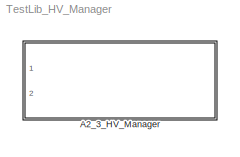
MODEL TestLib_HV_Manager
KIND library
CONFIG PostLoadFcn = , if any(exist('dsrtsu_mdlpostloadfcn', 'file') == [2, 3, 6]), try dsrtsu_mdlpostloadfcn('Execute', bdroot); catch fprintf('Error in PostLoadFcn (dsrtsu_mdlpostloadfcn) for model \"%s\":\\n %s\\n', bdroot, lasterr); end, end, \n
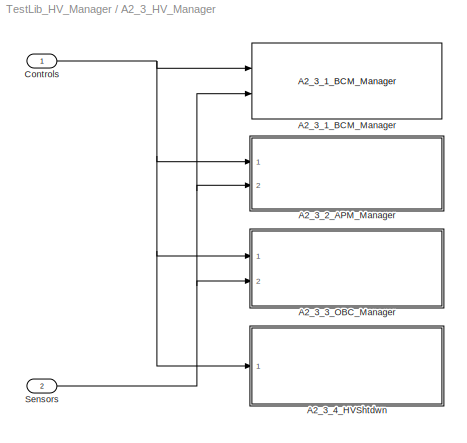
BLOCK [SubSystem] A2_3_HV_Manager
  FunctionWithSeparateData = off
  MaskHideContents = off
  MinAlgLoopOccurrences = off
  Opaque = off
  Ports = [2]
  PropExecContextOutsideSubsystem = off
  RTWSystemCode = Auto
  RequestExecContextInheritance = off
  SID = 1
BLOCK [Reference] A2_3_HV_Manager/A2_3_1_BCM_Manager  REF=TestLib_BCM_Manager/A2_3_1_BCM_Manager
  FunctionWithSeparateData = off
  Ports = [2]
  RTWMemSecDataConstants = Inherit from model
  RTWMemSecDataInternal = Inherit from model
  RTWMemSecDataParameters = Inherit from model
  RTWMemSecFuncExecute = Inherit from model
  RTWMemSecFuncInitTerm = Inherit from model
  SID = 153
  ShowPortLabels = FromPortIcon
  SourceBlock = TestLib_BCM_Manager/A2_3_1_BCM_Manager
  SourceType = SubSystem
  SystemSampleTime = -1
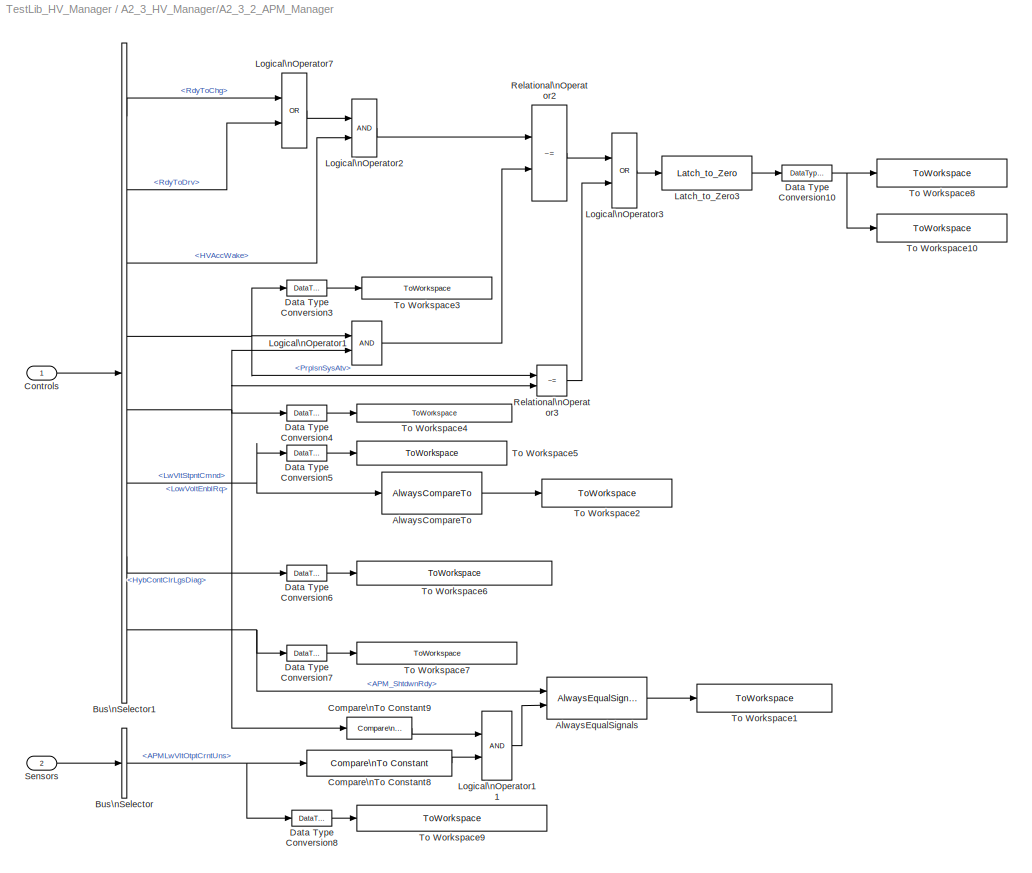
BLOCK [SubSystem] A2_3_HV_Manager/A2_3_2_APM_Manager
  FunctionWithSeparateData = off
  MaskHideContents = off
  MinAlgLoopOccurrences = off
  Opaque = off
  Ports = [2]
  PropExecContextOutsideSubsystem = off
  RTWSystemCode = Auto
  RequestExecContextInheritance = off
  SID = 5
BLOCK [Reference] A2_3_HV_Manager/A2_3_2_APM_Manager/AlwaysCompareTo  REF=EC2_libraries/AlwaysCompareTo
  FunctionWithSeparateData = off
  Ports = [1, 1]
  RTWMemSecDataConstants = Inherit from model
  RTWMemSecDataInternal = Inherit from model
  RTWMemSecDataParameters = Inherit from model
  RTWMemSecFuncExecute = Inherit from model
  RTWMemSecFuncInitTerm = Inherit from model
  SID = 150
  ShowPortLabels = FromPortIcon
  SourceBlock = EC2_libraries/AlwaysCompareTo
  SystemSampleTime = -1
  exp_val = cal.apm.LowVoltageSetpoint
BLOCK [Reference] A2_3_HV_Manager/A2_3_2_APM_Manager/AlwaysEqualSignals  REF=EC2_libraries/AlwaysEqualSignals
  FunctionWithSeparateData = off
  Ports = [2, 1]
  RTWMemSecDataConstants = Inherit from model
  RTWMemSecDataInternal = Inherit from model
  RTWMemSecDataParameters = Inherit from model
  RTWMemSecFuncExecute = Inherit from model
  RTWMemSecFuncInitTerm = Inherit from model
  SID = 151
  ShowPortLabels = FromPortIcon
  SourceBlock = EC2_libraries/AlwaysEqualSignals
  SourceType = SubSystem
  SystemSampleTime = -1
BLOCK [BusSelector] A2_3_HV_Manager/A2_3_2_APM_Manager/Bus\nSelector
  OutputSignals = Sensors_CAN.APM_HS_Tx.Accessory_Pwr_Mod_Gen_Status_1.APMLwVltOtptCrntUns
  Ports = [1, 1]
  SID = 8
BLOCK [BusSelector] A2_3_HV_Manager/A2_3_2_APM_Manager/Bus\nSelector1
  OutputSignals = Powertrain_SC_Controls.HV_Status.RdyToChg,Powertrain_SC_Controls.HV_Status.RdyToDrv,Powertrain_SC_Controls.HV_Status.HVAccWake,Powertrain_SC_Controls.APM_Controls.PrplsnSysAtv,Powertrain_SC_Controls.APM_Controls.LowVoltEnblRq,Powertrain_SC_Controls.APM_Controls.LwVltStpntCmnd,Powertrain_SC_Controls.APM_Controls.HybContClrLgsDiag,Powertrain_SC_Controls.APM_Status.APM_ShtdwnRdy
  Ports = [1, 8]
  SID = 9
BLOCK [Reference] A2_3_HV_Manager/A2_3_2_APM_Manager/Compare\nTo Constant8  REF=simulink/Logic and Bit\nOperations/Compare\nTo Constant
  FunctionWithSeparateData = off
  LogicOutDataTypeMode = uint8
  Ports = [1, 1]
  RTWMemSecDataConstants = Inherit from model
  RTWMemSecDataInternal = Inherit from model
  RTWMemSecDataParameters = Inherit from model
  RTWMemSecFuncExecute = Inherit from model
  RTWMemSecFuncInitTerm = Inherit from model
  SID = 11
  ShowPortLabels = FromPortIcon
  SourceBlock = simulink/Logic and Bit\nOperations/Compare\nTo Constant
  SourceType = Compare To Constant
  SystemSampleTime = -1
  ZeroCross = on
  const = cal.apm.MaxShtdwnCurrent
  relop = <
BLOCK [Reference] A2_3_HV_Manager/A2_3_2_APM_Manager/Compare\nTo Constant9  REF=simulink/Logic and Bit\nOperations/Compare\nTo Constant
  FunctionWithSeparateData = off
  LogicOutDataTypeMode = boolean
  Ports = [1, 1]
  RTWMemSecDataConstants = Inherit from model
  RTWMemSecDataInternal = Inherit from model
  RTWMemSecDataParameters = Inherit from model
  RTWMemSecFuncExecute = Inherit from model
  RTWMemSecFuncInitTerm = Inherit from model
  SID = 12
  ShowPortLabels = FromPortIcon
  SourceBlock = simulink/Logic and Bit\nOperations/Compare\nTo Constant
  SourceType = Compare To Constant
  SystemSampleTime = -1
  ZeroCross = on
  const = 0
  relop = ==
BLOCK [Inport] A2_3_HV_Manager/A2_3_2_APM_Manager/Controls
  IconDisplay = Port number
  OutDataType = fixdt(1, 16)
  OutScaling = 2^0
  SID = 6
BLOCK [DataTypeConversion] A2_3_HV_Manager/A2_3_2_APM_Manager/Data Type Conversion10
  OutDataType = fixdt(1, 16)
  OutScaling = 2^0
  RndMeth = Floor
  SID = 14
  SaturateOnIntegerOverflow = off
BLOCK [DataTypeConversion] A2_3_HV_Manager/A2_3_2_APM_Manager/Data Type Conversion3
  OutDataType = fixdt(1, 16)
  OutScaling = 2^0
  RndMeth = Floor
  SID = 16
  SaturateOnIntegerOverflow = off
BLOCK [DataTypeConversion] A2_3_HV_Manager/A2_3_2_APM_Manager/Data Type Conversion4
  OutDataType = fixdt(1, 16)
  OutScaling = 2^0
  RndMeth = Floor
  SID = 17
  SaturateOnIntegerOverflow = off
BLOCK [DataTypeConversion] A2_3_HV_Manager/A2_3_2_APM_Manager/Data Type Conversion5
  OutDataType = fixdt(1, 16)
  OutScaling = 2^0
  RndMeth = Floor
  SID = 18
  SaturateOnIntegerOverflow = off
BLOCK [DataTypeConversion] A2_3_HV_Manager/A2_3_2_APM_Manager/Data Type Conversion6
  OutDataType = fixdt(1, 16)
  OutScaling = 2^0
  RndMeth = Floor
  SID = 19
  SaturateOnIntegerOverflow = off
BLOCK [DataTypeConversion] A2_3_HV_Manager/A2_3_2_APM_Manager/Data Type Conversion7
  OutDataType = fixdt(1, 16)
  OutScaling = 2^0
  RndMeth = Floor
  SID = 20
  SaturateOnIntegerOverflow = off
BLOCK [DataTypeConversion] A2_3_HV_Manager/A2_3_2_APM_Manager/Data Type Conversion8
  OutDataType = fixdt(1, 16)
  OutScaling = 2^0
  RndMeth = Floor
  SID = 21
  SaturateOnIntegerOverflow = off
BLOCK [Reference] A2_3_HV_Manager/A2_3_2_APM_Manager/Latch_to_Zero3  REF=EC2_libraries/Latch_to_Zero
  FunctionWithSeparateData = off
  Ports = [1, 1]
  RTWMemSecDataConstants = Inherit from model
  RTWMemSecDataInternal = Inherit from model
  RTWMemSecDataParameters = Inherit from model
  RTWMemSecFuncExecute = Inherit from model
  RTWMemSecFuncInitTerm = Inherit from model
  SID = 24
  ShowPortLabels = FromPortIcon
  SourceBlock = EC2_libraries/Latch_to_Zero
  SourceType = SubSystem
  SystemSampleTime = -1
BLOCK [Logic] A2_3_HV_Manager/A2_3_2_APM_Manager/Logical\nOperator1
  AllPortsSameDT = off
  OutDataTypeMode = boolean
  OutDataTypeStr = boolean
  Ports = [2, 1]
  SID = 25
BLOCK [Logic] A2_3_HV_Manager/A2_3_2_APM_Manager/Logical\nOperator11
  AllPortsSameDT = off
  OutDataTypeMode = boolean
  OutDataTypeStr = boolean
  Ports = [2, 1]
  SID = 26
BLOCK [Logic] A2_3_HV_Manager/A2_3_2_APM_Manager/Logical\nOperator2
  AllPortsSameDT = off
  OutDataTypeMode = boolean
  OutDataTypeStr = boolean
  Ports = [2, 1]
  SID = 27
BLOCK [Logic] A2_3_HV_Manager/A2_3_2_APM_Manager/Logical\nOperator3
  AllPortsSameDT = off
  Operator = OR
  OutDataTypeMode = boolean
  OutDataTypeStr = boolean
  Ports = [2, 1]
  SID = 28
BLOCK [Logic] A2_3_HV_Manager/A2_3_2_APM_Manager/Logical\nOperator7
  AllPortsSameDT = off
  Operator = OR
  OutDataTypeMode = boolean
  OutDataTypeStr = boolean
  Ports = [2, 1]
  SID = 29
BLOCK [RelationalOperator] A2_3_HV_Manager/A2_3_2_APM_Manager/Relational\nOperator2
  InputSameDT = off
  LogicDataType = fixdt(0, 8)
  LogicOutDataTypeMode = boolean
  Operator = ~=
  OutDataTypeStr = boolean
  Ports = [2, 1]
  SID = 31
BLOCK [RelationalOperator] A2_3_HV_Manager/A2_3_2_APM_Manager/Relational\nOperator3
  InputSameDT = off
  LogicDataType = fixdt(0, 8)
  LogicOutDataTypeMode = boolean
  Operator = ~=
  OutDataTypeStr = boolean
  Ports = [2, 1]
  SID = 32
BLOCK [Inport] A2_3_HV_Manager/A2_3_2_APM_Manager/Sensors
  IconDisplay = Port number
  OutDataType = fixdt(1, 16)
  OutScaling = 2^0
  Port = 2
  SID = 7
BLOCK [ToWorkspace] A2_3_HV_Manager/A2_3_2_APM_Manager/To Workspace1
  Decimation = WORKSPACE_DECIMATION
  MaxDataPoints = inf
  Ports = [1]
  SID = 33
  SampleTime = -1
  SaveFormat = Array
  VariableName = Req_A_2_3_2_3_1_Check
BLOCK [ToWorkspace] A2_3_HV_Manager/A2_3_2_APM_Manager/To Workspace10
  Decimation = WORKSPACE_DECIMATION
  MaxDataPoints = inf
  Ports = [1]
  SID = 34
  SampleTime = -1
  SaveFormat = Array
  VariableName = Req_A_2_3_2_3_Check
BLOCK [ToWorkspace] A2_3_HV_Manager/A2_3_2_APM_Manager/To Workspace2
  Decimation = WORKSPACE_DECIMATION
  MaxDataPoints = inf
  Ports = [1]
  SID = 35
  SampleTime = -1
  SaveFormat = Array
  VariableName = Req_A_2_3_2_2_Check
BLOCK [ToWorkspace] A2_3_HV_Manager/A2_3_2_APM_Manager/To Workspace3
  Decimation = WORKSPACE_DECIMATION
  MaxDataPoints = inf
  Ports = [1]
  SID = 36
  SampleTime = -1
  SaveFormat = Array
  VariableName = Powertrain_PrplsnSysAtv
BLOCK [ToWorkspace] A2_3_HV_Manager/A2_3_2_APM_Manager/To Workspace4
  Decimation = WORKSPACE_DECIMATION
  MaxDataPoints = inf
  Ports = [1]
  SID = 37
  SampleTime = -1
  SaveFormat = Array
  VariableName = Powertrain_LowVoltEnblRq
BLOCK [ToWorkspace] A2_3_HV_Manager/A2_3_2_APM_Manager/To Workspace5
  Decimation = WORKSPACE_DECIMATION
  MaxDataPoints = inf
  Ports = [1]
  SID = 38
  SampleTime = -1
  SaveFormat = Array
  VariableName = Powertrain_LwVltStpntCmnd
BLOCK [ToWorkspace] A2_3_HV_Manager/A2_3_2_APM_Manager/To Workspace6
  Decimation = WORKSPACE_DECIMATION
  MaxDataPoints = inf
  Ports = [1]
  SID = 39
  SampleTime = -1
  SaveFormat = Array
  VariableName = Powertrain_HybContClrLgsDiag
BLOCK [ToWorkspace] A2_3_HV_Manager/A2_3_2_APM_Manager/To Workspace7
  Decimation = WORKSPACE_DECIMATION
  MaxDataPoints = inf
  Ports = [1]
  SID = 40
  SampleTime = -1
  SaveFormat = Array
  VariableName = Powertrain_APM_ShtdwnRdy
BLOCK [ToWorkspace] A2_3_HV_Manager/A2_3_2_APM_Manager/To Workspace8
  Decimation = WORKSPACE_DECIMATION
  MaxDataPoints = inf
  Ports = [1]
  SID = 41
  SampleTime = -1
  SaveFormat = Array
  VariableName = Req_A_2_3_2_1_Check
BLOCK [ToWorkspace] A2_3_HV_Manager/A2_3_2_APM_Manager/To Workspace9
  Decimation = WORKSPACE_DECIMATION
  MaxDataPoints = inf
  Ports = [1]
  SID = 42
  SampleTime = -1
  SaveFormat = Array
  VariableName = Sensors_APMLwVltOtptCrntUns
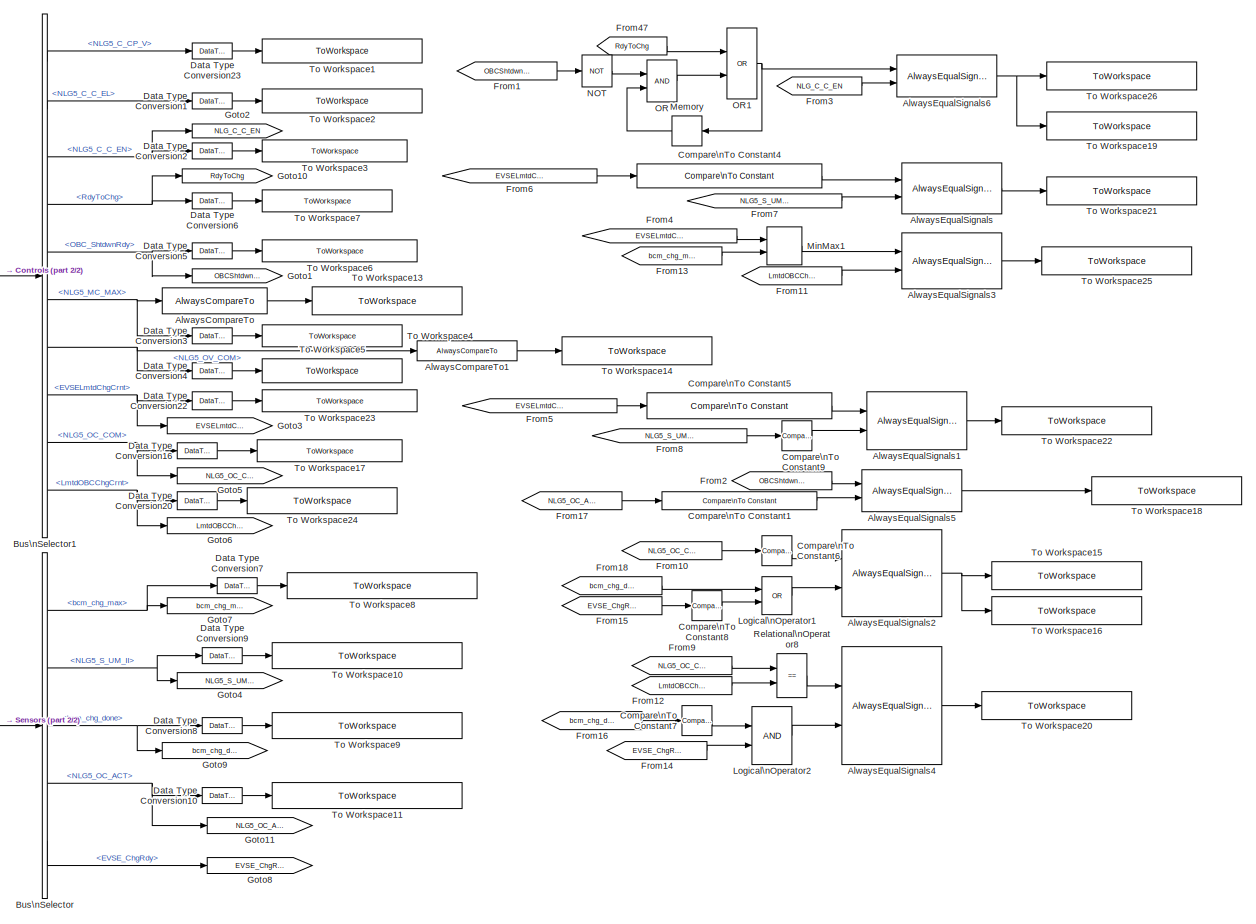
[diagram: A2_3_HV_Manager/A2_3_3_OBC_Manager - part 1/2, most of the canvas]
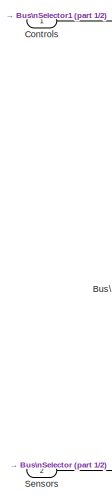
[diagram: A2_3_HV_Manager/A2_3_3_OBC_Manager - part 2/2, middle left region]
BLOCK [SubSystem] A2_3_HV_Manager/A2_3_3_OBC_Manager
  FunctionWithSeparateData = off
  MaskHideContents = off
  MinAlgLoopOccurrences = off
  Opaque = off
  Ports = [2]
  PropExecContextOutsideSubsystem = off
  RTWSystemCode = Auto
  RequestExecContextInheritance = off
  SID = 43
BLOCK [Reference] A2_3_HV_Manager/A2_3_3_OBC_Manager/AlwaysCompareTo  REF=EC2_libraries/AlwaysCompareTo
  FunctionWithSeparateData = off
  Ports = [1, 1]
  RTWMemSecDataConstants = Inherit from model
  RTWMemSecDataInternal = Inherit from model
  RTWMemSecDataParameters = Inherit from model
  RTWMemSecFuncExecute = Inherit from model
  RTWMemSecFuncInitTerm = Inherit from model
  SID = 46
  ShowPortLabels = FromPortIcon
  SourceBlock = EC2_libraries/AlwaysCompareTo
  SystemSampleTime = -1
  exp_val = cal.obc.MaxMainsCurrent
BLOCK [Reference] A2_3_HV_Manager/A2_3_3_OBC_Manager/AlwaysCompareTo1  REF=EC2_libraries/AlwaysCompareTo
  FunctionWithSeparateData = off
  Ports = [1, 1]
  RTWMemSecDataConstants = Inherit from model
  RTWMemSecDataInternal = Inherit from model
  RTWMemSecDataParameters = Inherit from model
  RTWMemSecFuncExecute = Inherit from model
  RTWMemSecFuncInitTerm = Inherit from model
  SID = 47
  ShowPortLabels = FromPortIcon
  SourceBlock = EC2_libraries/AlwaysCompareTo
  SystemSampleTime = -1
  exp_val = cal.obc.MaxOutputVoltage
BLOCK [Reference] A2_3_HV_Manager/A2_3_3_OBC_Manager/AlwaysEqualSignals  REF=EC2_libraries/AlwaysEqualSignals
  FunctionWithSeparateData = off
  Ports = [2, 1]
  RTWMemSecDataConstants = Inherit from model
  RTWMemSecDataInternal = Inherit from model
  RTWMemSecDataParameters = Inherit from model
  RTWMemSecFuncExecute = Inherit from model
  RTWMemSecFuncInitTerm = Inherit from model
  SID = 48
  ShowPortLabels = FromPortIcon
  SourceBlock = EC2_libraries/AlwaysEqualSignals
  SourceType = SubSystem
  SystemSampleTime = -1
BLOCK [Reference] A2_3_HV_Manager/A2_3_3_OBC_Manager/AlwaysEqualSignals1  REF=EC2_libraries/AlwaysEqualSignals
  FunctionWithSeparateData = off
  Ports = [2, 1]
  RTWMemSecDataConstants = Inherit from model
  RTWMemSecDataInternal = Inherit from model
  RTWMemSecDataParameters = Inherit from model
  RTWMemSecFuncExecute = Inherit from model
  RTWMemSecFuncInitTerm = Inherit from model
  SID = 49
  ShowPortLabels = FromPortIcon
  SourceBlock = EC2_libraries/AlwaysEqualSignals
  SourceType = SubSystem
  SystemSampleTime = -1
BLOCK [Reference] A2_3_HV_Manager/A2_3_3_OBC_Manager/AlwaysEqualSignals2  REF=EC2_libraries/AlwaysEqualSignals
  FunctionWithSeparateData = off
  Ports = [2, 1]
  RTWMemSecDataConstants = Inherit from model
  RTWMemSecDataInternal = Inherit from model
  RTWMemSecDataParameters = Inherit from model
  RTWMemSecFuncExecute = Inherit from model
  RTWMemSecFuncInitTerm = Inherit from model
  SID = 50
  ShowPortLabels = FromPortIcon
  SourceBlock = EC2_libraries/AlwaysEqualSignals
  SourceType = SubSystem
  SystemSampleTime = -1
BLOCK [Reference] A2_3_HV_Manager/A2_3_3_OBC_Manager/AlwaysEqualSignals3  REF=EC2_libraries/AlwaysEqualSignals
  FunctionWithSeparateData = off
  Ports = [2, 1]
  RTWMemSecDataConstants = Inherit from model
  RTWMemSecDataInternal = Inherit from model
  RTWMemSecDataParameters = Inherit from model
  RTWMemSecFuncExecute = Inherit from model
  RTWMemSecFuncInitTerm = Inherit from model
  SID = 51
  ShowPortLabels = FromPortIcon
  SourceBlock = EC2_libraries/AlwaysEqualSignals
  SourceType = SubSystem
  SystemSampleTime = -1
BLOCK [Reference] A2_3_HV_Manager/A2_3_3_OBC_Manager/AlwaysEqualSignals4  REF=EC2_libraries/AlwaysEqualSignals
  FunctionWithSeparateData = off
  Ports = [2, 1]
  RTWMemSecDataConstants = Inherit from model
  RTWMemSecDataInternal = Inherit from model
  RTWMemSecDataParameters = Inherit from model
  RTWMemSecFuncExecute = Inherit from model
  RTWMemSecFuncInitTerm = Inherit from model
  SID = 52
  ShowPortLabels = FromPortIcon
  SourceBlock = EC2_libraries/AlwaysEqualSignals
  SourceType = SubSystem
  SystemSampleTime = -1
BLOCK [Reference] A2_3_HV_Manager/A2_3_3_OBC_Manager/AlwaysEqualSignals5  REF=EC2_libraries/AlwaysEqualSignals
  FunctionWithSeparateData = off
  Ports = [2, 1]
  RTWMemSecDataConstants = Inherit from model
  RTWMemSecDataInternal = Inherit from model
  RTWMemSecDataParameters = Inherit from model
  RTWMemSecFuncExecute = Inherit from model
  RTWMemSecFuncInitTerm = Inherit from model
  SID = 53
  ShowPortLabels = FromPortIcon
  SourceBlock = EC2_libraries/AlwaysEqualSignals
  SourceType = SubSystem
  SystemSampleTime = -1
BLOCK [Reference] A2_3_HV_Manager/A2_3_3_OBC_Manager/AlwaysEqualSignals6  REF=EC2_libraries/AlwaysEqualSignals
  FunctionWithSeparateData = off
  Ports = [2, 1]
  RTWMemSecDataConstants = Inherit from model
  RTWMemSecDataInternal = Inherit from model
  RTWMemSecDataParameters = Inherit from model
  RTWMemSecFuncExecute = Inherit from model
  RTWMemSecFuncInitTerm = Inherit from model
  SID = 54
  ShowPortLabels = FromPortIcon
  SourceBlock = EC2_libraries/AlwaysEqualSignals
  SourceType = SubSystem
  SystemSampleTime = -1
BLOCK [BusSelector] A2_3_HV_Manager/A2_3_3_OBC_Manager/Bus\nSelector
  OutputSignals = Sensors_CAN.BCM_HS_Tx.BCM_Limits.bcm_chg_max,Sensors_CAN.OBC_HS_Tx.NLG5_ST.NLG5_S_UM_II,Sensors_CAN.BCM_HS_Tx.BCM_Status.bcm_chg_done,Sensors_CAN.OBC_HS_Tx.NLG5_ACT_I.NLG5_OC_ACT,Analog.EVSE_ChgRdy
  Ports = [1, 5]
  SID = 55
BLOCK [BusSelector] A2_3_HV_Manager/A2_3_3_OBC_Manager/Bus\nSelector1
  OutputSignals = Powertrain_SC_Controls.OBC_Controls.NLG5_C_CP_V,Powertrain_SC_Controls.OBC_Controls.NLG5_C_C_EL,Powertrain_SC_Controls.OBC_Controls.NLG5_C_C_EN,Powertrain_SC_Controls.HV_Status.RdyToChg,Powertrain_SC_Controls.OBC_Status.OBC_ShtdwnRdy,Powertrain_SC_Controls.OBC_Controls.NLG5_MC_MAX,Powertrain_SC_Controls.OBC_Controls.NLG5_OV_COM,Powertrain_SC_Controls.OBC_Status.EVSELmtdChgCrnt,Powertrain_SC_Contro...<+76ch>
  Ports = [1, 10]
  SID = 56
BLOCK [Reference] A2_3_HV_Manager/A2_3_3_OBC_Manager/Compare\nTo Constant1  REF=simulink/Logic and Bit\nOperations/Compare\nTo Constant
  FunctionWithSeparateData = off
  LogicOutDataTypeMode = boolean
  Ports = [1, 1]
  RTWMemSecDataConstants = Inherit from model
  RTWMemSecDataInternal = Inherit from model
  RTWMemSecDataParameters = Inherit from model
  RTWMemSecFuncExecute = Inherit from model
  RTWMemSecFuncInitTerm = Inherit from model
  SID = 57
  ShowPortLabels = FromPortIcon
  SourceBlock = simulink/Logic and Bit\nOperations/Compare\nTo Constant
  SourceType = Compare To Constant
  SystemSampleTime = -1
  ZeroCross = on
  const = cal.obc.MaxShtdwnCurrent
  relop = <
BLOCK [Reference] A2_3_HV_Manager/A2_3_3_OBC_Manager/Compare\nTo Constant4  REF=simulink/Logic and Bit\nOperations/Compare\nTo Constant
  FunctionWithSeparateData = off
  LogicOutDataTypeMode = boolean
  Ports = [1, 1]
  RTWMemSecDataConstants = Inherit from model
  RTWMemSecDataInternal = Inherit from model
  RTWMemSecDataParameters = Inherit from model
  RTWMemSecFuncExecute = Inherit from model
  RTWMemSecFuncInitTerm = Inherit from model
  SID = 58
  ShowPortLabels = FromPortIcon
  SourceBlock = simulink/Logic and Bit\nOperations/Compare\nTo Constant
  SourceType = Compare To Constant
  SystemSampleTime = -1
  ZeroCross = on
  const = cal.obc.MaxChargeCurrent_Level2
  relop = ==
BLOCK [Reference] A2_3_HV_Manager/A2_3_3_OBC_Manager/Compare\nTo Constant5  REF=simulink/Logic and Bit\nOperations/Compare\nTo Constant
  FunctionWithSeparateData = off
  LogicOutDataTypeMode = boolean
  Ports = [1, 1]
  RTWMemSecDataConstants = Inherit from model
  RTWMemSecDataInternal = Inherit from model
  RTWMemSecDataParameters = Inherit from model
  RTWMemSecFuncExecute = Inherit from model
  RTWMemSecFuncInitTerm = Inherit from model
  SID = 59
  ShowPortLabels = FromPortIcon
  SourceBlock = simulink/Logic and Bit\nOperations/Compare\nTo Constant
  SourceType = Compare To Constant
  SystemSampleTime = -1
  ZeroCross = on
  const = cal.obc.MaxChargeCurrent_Level1
  relop = ==
BLOCK [Reference] A2_3_HV_Manager/A2_3_3_OBC_Manager/Compare\nTo Constant6  REF=simulink/Logic and Bit\nOperations/Compare\nTo Constant
  FunctionWithSeparateData = off
  LogicOutDataTypeMode = boolean
  Ports = [1, 1]
  RTWMemSecDataConstants = Inherit from model
  RTWMemSecDataInternal = Inherit from model
  RTWMemSecDataParameters = Inherit from model
  RTWMemSecFuncExecute = Inherit from model
  RTWMemSecFuncInitTerm = Inherit from model
  SID = 60
  ShowPortLabels = FromPortIcon
  SourceBlock = simulink/Logic and Bit\nOperations/Compare\nTo Constant
  SourceType = Compare To Constant
  SystemSampleTime = -1
  ZeroCross = on
  const = 0
  relop = ==
BLOCK [Reference] A2_3_HV_Manager/A2_3_3_OBC_Manager/Compare\nTo Constant7  REF=simulink/Logic and Bit\nOperations/Compare\nTo Constant
  FunctionWithSeparateData = off
  LogicOutDataTypeMode = boolean
  Ports = [1, 1]
  RTWMemSecDataConstants = Inherit from model
  RTWMemSecDataInternal = Inherit from model
  RTWMemSecDataParameters = Inherit from model
  RTWMemSecFuncExecute = Inherit from model
  RTWMemSecFuncInitTerm = Inherit from model
  SID = 61
  ShowPortLabels = FromPortIcon
  SourceBlock = simulink/Logic and Bit\nOperations/Compare\nTo Constant
  SourceType = Compare To Constant
  SystemSampleTime = -1
  ZeroCross = on
  const = 0
  relop = ==
BLOCK [Reference] A2_3_HV_Manager/A2_3_3_OBC_Manager/Compare\nTo Constant8  REF=simulink/Logic and Bit\nOperations/Compare\nTo Constant
  FunctionWithSeparateData = off
  LogicOutDataTypeMode = boolean
  Ports = [1, 1]
  RTWMemSecDataConstants = Inherit from model
  RTWMemSecDataInternal = Inherit from model
  RTWMemSecDataParameters = Inherit from model
  RTWMemSecFuncExecute = Inherit from model
  RTWMemSecFuncInitTerm = Inherit from model
  SID = 62
  ShowPortLabels = FromPortIcon
  SourceBlock = simulink/Logic and Bit\nOperations/Compare\nTo Constant
  SourceType = Compare To Constant
  SystemSampleTime = -1
  ZeroCross = on
  const = 0
  relop = ==
BLOCK [Reference] A2_3_HV_Manager/A2_3_3_OBC_Manager/Compare\nTo Constant9  REF=simulink/Logic and Bit\nOperations/Compare\nTo Constant
  FunctionWithSeparateData = off
  LogicOutDataTypeMode = boolean
  Ports = [1, 1]
  RTWMemSecDataConstants = Inherit from model
  RTWMemSecDataInternal = Inherit from model
  RTWMemSecDataParameters = Inherit from model
  RTWMemSecFuncExecute = Inherit from model
  RTWMemSecFuncInitTerm = Inherit from model
  SID = 63
  ShowPortLabels = FromPortIcon
  SourceBlock = simulink/Logic and Bit\nOperations/Compare\nTo Constant
  SourceType = Compare To Constant
  SystemSampleTime = -1
  ZeroCross = on
  const = 0
  relop = ==
BLOCK [Inport] A2_3_HV_Manager/A2_3_3_OBC_Manager/Controls
  IconDisplay = Port number
  OutDataType = fixdt(1, 16)
  OutScaling = 2^0
  SID = 44
BLOCK [DataTypeConversion] A2_3_HV_Manager/A2_3_3_OBC_Manager/Data Type Conversion1
  OutDataType = fixdt(1, 16)
  OutScaling = 2^0
  RndMeth = Floor
  SID = 64
  SaturateOnIntegerOverflow = off
BLOCK [DataTypeConversion] A2_3_HV_Manager/A2_3_3_OBC_Manager/Data Type Conversion10
  OutDataType = fixdt(1, 16)
  OutScaling = 2^0
  RndMeth = Floor
  SID = 65
  SaturateOnIntegerOverflow = off
BLOCK [DataTypeConversion] A2_3_HV_Manager/A2_3_3_OBC_Manager/Data Type Conversion16
  OutDataType = fixdt(1, 16)
  OutScaling = 2^0
  RndMeth = Floor
  SID = 67
  SaturateOnIntegerOverflow = off
BLOCK [DataTypeConversion] A2_3_HV_Manager/A2_3_3_OBC_Manager/Data Type Conversion2
  OutDataType = fixdt(1, 16)
  OutScaling = 2^0
  RndMeth = Floor
  SID = 68
  SaturateOnIntegerOverflow = off
BLOCK [DataTypeConversion] A2_3_HV_Manager/A2_3_3_OBC_Manager/Data Type Conversion20
  OutDataType = fixdt(1, 16)
  OutScaling = 2^0
  RndMeth = Floor
  SID = 69
  SaturateOnIntegerOverflow = off
BLOCK [DataTypeConversion] A2_3_HV_Manager/A2_3_3_OBC_Manager/Data Type Conversion22
  OutDataType = fixdt(1, 16)
  OutScaling = 2^0
  RndMeth = Floor
  SID = 70
  SaturateOnIntegerOverflow = off
BLOCK [DataTypeConversion] A2_3_HV_Manager/A2_3_3_OBC_Manager/Data Type Conversion23
  OutDataType = fixdt(1, 16)
  OutScaling = 2^0
  RndMeth = Floor
  SID = 71
  SaturateOnIntegerOverflow = off
BLOCK [DataTypeConversion] A2_3_HV_Manager/A2_3_3_OBC_Manager/Data Type Conversion3
  OutDataType = fixdt(1, 16)
  OutScaling = 2^0
  RndMeth = Floor
  SID = 72
  SaturateOnIntegerOverflow = off
BLOCK [DataTypeConversion] A2_3_HV_Manager/A2_3_3_OBC_Manager/Data Type Conversion4
  OutDataType = fixdt(1, 16)
  OutScaling = 2^0
  RndMeth = Floor
  SID = 73
  SaturateOnIntegerOverflow = off
BLOCK [DataTypeConversion] A2_3_HV_Manager/A2_3_3_OBC_Manager/Data Type Conversion5
  OutDataType = fixdt(1, 16)
  OutScaling = 2^0
  RndMeth = Floor
  SID = 74
  SaturateOnIntegerOverflow = off
BLOCK [DataTypeConversion] A2_3_HV_Manager/A2_3_3_OBC_Manager/Data Type Conversion6
  OutDataType = fixdt(1, 16)
  OutScaling = 2^0
  RndMeth = Floor
  SID = 75
  SaturateOnIntegerOverflow = off
BLOCK [DataTypeConversion] A2_3_HV_Manager/A2_3_3_OBC_Manager/Data Type Conversion7
  OutDataType = fixdt(1, 16)
  OutScaling = 2^0
  RndMeth = Floor
  SID = 76
  SaturateOnIntegerOverflow = off
BLOCK [DataTypeConversion] A2_3_HV_Manager/A2_3_3_OBC_Manager/Data Type Conversion8
  OutDataType = fixdt(1, 16)
  OutScaling = 2^0
  RndMeth = Floor
  SID = 77
  SaturateOnIntegerOverflow = off
BLOCK [DataTypeConversion] A2_3_HV_Manager/A2_3_3_OBC_Manager/Data Type Conversion9
  OutDataType = fixdt(1, 16)
  OutScaling = 2^0
  RndMeth = Floor
  SID = 78
  SaturateOnIntegerOverflow = off
BLOCK [From] A2_3_HV_Manager/A2_3_3_OBC_Manager/From1
  GotoTag = OBCShtdwnRdy
  SID = 79
BLOCK [From] A2_3_HV_Manager/A2_3_3_OBC_Manager/From10
  GotoTag = NLG5_OC_COM
  SID = 80
BLOCK [From] A2_3_HV_Manager/A2_3_3_OBC_Manager/From11
  GotoTag = LmtdOBCChgCrnt
  SID = 81
BLOCK [From] A2_3_HV_Manager/A2_3_3_OBC_Manager/From12
  GotoTag = LmtdOBCChgCrnt
  SID = 82
BLOCK [From] A2_3_HV_Manager/A2_3_3_OBC_Manager/From13
  GotoTag = bcm_chg_max
  SID = 83
BLOCK [From] A2_3_HV_Manager/A2_3_3_OBC_Manager/From14
  GotoTag = EVSE_ChgRdy
  SID = 84
BLOCK [From] A2_3_HV_Manager/A2_3_3_OBC_Manager/From15
  GotoTag = EVSE_ChgRdy
  SID = 85
BLOCK [From] A2_3_HV_Manager/A2_3_3_OBC_Manager/From16
  GotoTag = bcm_chg_done
  SID = 86
BLOCK [From] A2_3_HV_Manager/A2_3_3_OBC_Manager/From17
  GotoTag = NLG5_OC_ACT
  SID = 87
BLOCK [From] A2_3_HV_Manager/A2_3_3_OBC_Manager/From18
  GotoTag = bcm_chg_done
  SID = 88
BLOCK [From] A2_3_HV_Manager/A2_3_3_OBC_Manager/From2
  GotoTag = OBCShtdwnRdy
  SID = 89
BLOCK [From] A2_3_HV_Manager/A2_3_3_OBC_Manager/From3
  GotoTag = NLG_C_C_EN
  SID = 90
BLOCK [From] A2_3_HV_Manager/A2_3_3_OBC_Manager/From4
  GotoTag = EVSELmtdChgCrnt
  SID = 91
BLOCK [From] A2_3_HV_Manager/A2_3_3_OBC_Manager/From47
  GotoTag = RdyToChg
  SID = 92
BLOCK [From] A2_3_HV_Manager/A2_3_3_OBC_Manager/From5
  GotoTag = EVSELmtdChgCrnt
  SID = 93
BLOCK [From] A2_3_HV_Manager/A2_3_3_OBC_Manager/From6
  GotoTag = EVSELmtdChgCrnt
  SID = 94
BLOCK [From] A2_3_HV_Manager/A2_3_3_OBC_Manager/From7
  GotoTag = NLG5_S_UM_II
  SID = 95
BLOCK [From] A2_3_HV_Manager/A2_3_3_OBC_Manager/From8
  GotoTag = NLG5_S_UM_II
  SID = 96
BLOCK [From] A2_3_HV_Manager/A2_3_3_OBC_Manager/From9
  GotoTag = NLG5_OC_COM
  SID = 97
BLOCK [Goto] A2_3_HV_Manager/A2_3_3_OBC_Manager/Goto1
  GotoTag = OBCShtdwnRdy
  SID = 98
  TagVisibility = local
BLOCK [Goto] A2_3_HV_Manager/A2_3_3_OBC_Manager/Goto10
  GotoTag = RdyToChg
  SID = 99
  TagVisibility = local
BLOCK [Goto] A2_3_HV_Manager/A2_3_3_OBC_Manager/Goto11
  GotoTag = NLG5_OC_ACT
  SID = 100
  TagVisibility = local
BLOCK [Goto] A2_3_HV_Manager/A2_3_3_OBC_Manager/Goto2
  GotoTag = NLG_C_C_EN
  SID = 101
  TagVisibility = local
BLOCK [Goto] A2_3_HV_Manager/A2_3_3_OBC_Manager/Goto3
  GotoTag = EVSELmtdChgCrnt
  SID = 102
  TagVisibility = local
BLOCK [Goto] A2_3_HV_Manager/A2_3_3_OBC_Manager/Goto4
  GotoTag = NLG5_S_UM_II
  SID = 103
  TagVisibility = local
BLOCK [Goto] A2_3_HV_Manager/A2_3_3_OBC_Manager/Goto5
  GotoTag = NLG5_OC_COM
  SID = 104
  TagVisibility = local
BLOCK [Goto] A2_3_HV_Manager/A2_3_3_OBC_Manager/Goto6
  GotoTag = LmtdOBCChgCrnt
  SID = 105
  TagVisibility = local
BLOCK [Goto] A2_3_HV_Manager/A2_3_3_OBC_Manager/Goto7
  GotoTag = bcm_chg_max
  SID = 106
  TagVisibility = local
BLOCK [Goto] A2_3_HV_Manager/A2_3_3_OBC_Manager/Goto8
  GotoTag = EVSE_ChgRdy
  SID = 107
  TagVisibility = local
BLOCK [Goto] A2_3_HV_Manager/A2_3_3_OBC_Manager/Goto9
  GotoTag = bcm_chg_done
  SID = 108
  TagVisibility = local
BLOCK [Logic] A2_3_HV_Manager/A2_3_3_OBC_Manager/Logical\nOperator1
  AllPortsSameDT = off
  Operator = OR
  OutDataTypeMode = boolean
  OutDataTypeStr = boolean
  Ports = [2, 1]
  SID = 109
BLOCK [Logic] A2_3_HV_Manager/A2_3_3_OBC_Manager/Logical\nOperator2
  AllPortsSameDT = off
  OutDataTypeMode = boolean
  OutDataTypeStr = boolean
  Ports = [2, 1]
  SID = 110
BLOCK [Memory] A2_3_HV_Manager/A2_3_3_OBC_Manager/Memory
  SID = 111
BLOCK [MinMax] A2_3_HV_Manager/A2_3_3_OBC_Manager/MinMax1
  Function = min
  InputSameDT = off
  Inputs = 2
  Ports = [2, 1]
  SID = 112
  SaturateOnIntegerOverflow = off
BLOCK [Logic] A2_3_HV_Manager/A2_3_3_OBC_Manager/NOT
  Operator = NOT
  OutDataTypeMode = boolean
  OutDataTypeStr = boolean
  Ports = [1, 1]
  SID = 113
BLOCK [Logic] A2_3_HV_Manager/A2_3_3_OBC_Manager/OR
  OutDataTypeMode = boolean
  OutDataTypeStr = boolean
  Ports = [2, 1]
  SID = 114
BLOCK [Logic] A2_3_HV_Manager/A2_3_3_OBC_Manager/OR1
  Operator = OR
  OutDataTypeMode = boolean
  OutDataTypeStr = boolean
  Ports = [2, 1]
  SID = 115
BLOCK [RelationalOperator] A2_3_HV_Manager/A2_3_3_OBC_Manager/Relational\nOperator8
  InputSameDT = off
  LogicDataType = fixdt(0, 8)
  LogicOutDataTypeMode = boolean
  Operator = ==
  OutDataTypeStr = boolean
  Ports = [2, 1]
  SID = 116
BLOCK [Inport] A2_3_HV_Manager/A2_3_3_OBC_Manager/Sensors
  IconDisplay = Port number
  OutDataType = fixdt(1, 16)
  OutScaling = 2^0
  Port = 2
  SID = 45
BLOCK [ToWorkspace] A2_3_HV_Manager/A2_3_3_OBC_Manager/To Workspace1
  Decimation = WORKSPACE_DECIMATION
  MaxDataPoints = inf
  Ports = [1]
  SID = 117
  SampleTime = -1
  SaveFormat = Array
  VariableName = Powertrain_NLG5_C_CP_V
BLOCK [ToWorkspace] A2_3_HV_Manager/A2_3_3_OBC_Manager/To Workspace10
  Decimation = WORKSPACE_DECIMATION
  MaxDataPoints = inf
  Ports = [1]
  SID = 118
  SampleTime = -1
  SaveFormat = Array
  VariableName = Sensors_NLG5_S_UM_II
BLOCK [ToWorkspace] A2_3_HV_Manager/A2_3_3_OBC_Manager/To Workspace11
  Decimation = WORKSPACE_DECIMATION
  MaxDataPoints = inf
  Ports = [1]
  SID = 119
  SampleTime = -1
  SaveFormat = Array
  VariableName = Sensors_NLG5_OC_ACT
BLOCK [ToWorkspace] A2_3_HV_Manager/A2_3_3_OBC_Manager/To Workspace13
  Decimation = WORKSPACE_DECIMATION
  MaxDataPoints = inf
  Ports = [1]
  SID = 121
  SampleTime = -1
  SaveFormat = Array
  VariableName = Req_A_2_3_3_2_1_Check
BLOCK [ToWorkspace] A2_3_HV_Manager/A2_3_3_OBC_Manager/To Workspace14
  Decimation = WORKSPACE_DECIMATION
  MaxDataPoints = inf
  Ports = [1]
  SID = 122
  SampleTime = -1
  SaveFormat = Array
  VariableName = Req_A_2_3_3_2_2_Check
BLOCK [ToWorkspace] A2_3_HV_Manager/A2_3_3_OBC_Manager/To Workspace15
  Decimation = WORKSPACE_DECIMATION
  MaxDataPoints = inf
  Ports = [1]
  SID = 123
  SampleTime = -1
  SaveFormat = Array
  VariableName = Req_A_2_3_3_2_4_Check
BLOCK [ToWorkspace] A2_3_HV_Manager/A2_3_3_OBC_Manager/To Workspace16
  Decimation = WORKSPACE_DECIMATION
  MaxDataPoints = inf
  Ports = [1]
  SID = 124
  SampleTime = -1
  SaveFormat = Array
  VariableName = Req_A_2_3_3_3_1_Check
BLOCK [ToWorkspace] A2_3_HV_Manager/A2_3_3_OBC_Manager/To Workspace17
  Decimation = WORKSPACE_DECIMATION
  MaxDataPoints = inf
  Ports = [1]
  SID = 125
  SampleTime = -1
  SaveFormat = Array
  VariableName = Powertrain_NLG5_OC_COM
BLOCK [ToWorkspace] A2_3_HV_Manager/A2_3_3_OBC_Manager/To Workspace18
  Decimation = WORKSPACE_DECIMATION
  MaxDataPoints = inf
  Ports = [1]
  SID = 126
  SampleTime = -1
  SaveFormat = Array
  VariableName = Req_A_2_3_3_3_2_Check
BLOCK [ToWorkspace] A2_3_HV_Manager/A2_3_3_OBC_Manager/To Workspace19
  Decimation = WORKSPACE_DECIMATION
  MaxDataPoints = inf
  Ports = [1]
  SID = 127
  SampleTime = -1
  SaveFormat = Array
  VariableName = Req_A_2_3_3_1_2_Check
BLOCK [ToWorkspace] A2_3_HV_Manager/A2_3_3_OBC_Manager/To Workspace2
  Decimation = WORKSPACE_DECIMATION
  MaxDataPoints = inf
  Ports = [1]
  SID = 128
  SampleTime = -1
  SaveFormat = Array
  VariableName = Powertrain_NLG5_C_C_EL
BLOCK [ToWorkspace] A2_3_HV_Manager/A2_3_3_OBC_Manager/To Workspace20
  Decimation = WORKSPACE_DECIMATION
  MaxDataPoints = inf
  Ports = [1]
  SID = 129
  SampleTime = -1
  SaveFormat = Array
  VariableName = Req_A_2_3_3_2_3_Check1
BLOCK [ToWorkspace] A2_3_HV_Manager/A2_3_3_OBC_Manager/To Workspace21
  Decimation = WORKSPACE_DECIMATION
  MaxDataPoints = inf
  Ports = [1]
  SID = 130
  SampleTime = -1
  SaveFormat = Array
  VariableName = Req_A_2_3_3_2_3_1_Check1
BLOCK [ToWorkspace] A2_3_HV_Manager/A2_3_3_OBC_Manager/To Workspace22
  Decimation = WORKSPACE_DECIMATION
  MaxDataPoints = inf
  Ports = [1]
  SID = 131
  SampleTime = -1
  SaveFormat = Array
  VariableName = Req_A_2_3_3_2_3_1_Check2
BLOCK [ToWorkspace] A2_3_HV_Manager/A2_3_3_OBC_Manager/To Workspace23
  Decimation = WORKSPACE_DECIMATION
  MaxDataPoints = inf
  Ports = [1]
  SID = 132
  SampleTime = -1
  SaveFormat = Array
  VariableName = Powertrain_EVSELmtdChgCrnt
BLOCK [ToWorkspace] A2_3_HV_Manager/A2_3_3_OBC_Manager/To Workspace24
  Decimation = WORKSPACE_DECIMATION
  MaxDataPoints = inf
  Ports = [1]
  SID = 133
  SampleTime = -1
  SaveFormat = Array
  VariableName = Powertrain_LmtdOBCChgCrnt
BLOCK [ToWorkspace] A2_3_HV_Manager/A2_3_3_OBC_Manager/To Workspace25
  Decimation = WORKSPACE_DECIMATION
  MaxDataPoints = inf
  Ports = [1]
  SID = 134
  SampleTime = -1
  SaveFormat = Array
  VariableName = Req_A_2_3_3_2_3_Check2
BLOCK [ToWorkspace] A2_3_HV_Manager/A2_3_3_OBC_Manager/To Workspace26
  Decimation = WORKSPACE_DECIMATION
  MaxDataPoints = inf
  Ports = [1]
  SID = 135
  SampleTime = -1
  SaveFormat = Array
  VariableName = Req_A_2_3_3_1_1_Check
BLOCK [ToWorkspace] A2_3_HV_Manager/A2_3_3_OBC_Manager/To Workspace3
  Decimation = WORKSPACE_DECIMATION
  MaxDataPoints = inf
  Ports = [1]
  SID = 136
  SampleTime = -1
  SaveFormat = Array
  VariableName = Powertrain_NLG5_C_C_EN
BLOCK [ToWorkspace] A2_3_HV_Manager/A2_3_3_OBC_Manager/To Workspace4
  Decimation = WORKSPACE_DECIMATION
  MaxDataPoints = inf
  Ports = [1]
  SID = 137
  SampleTime = -1
  SaveFormat = Array
  VariableName = Powertrain_NLG5_MC_MAX
BLOCK [ToWorkspace] A2_3_HV_Manager/A2_3_3_OBC_Manager/To Workspace5
  Decimation = WORKSPACE_DECIMATION
  MaxDataPoints = inf
  Ports = [1]
  SID = 138
  SampleTime = -1
  SaveFormat = Array
  VariableName = Powertrain_NLG5_OV_COM
BLOCK [ToWorkspace] A2_3_HV_Manager/A2_3_3_OBC_Manager/To Workspace6
  Decimation = WORKSPACE_DECIMATION
  MaxDataPoints = inf
  Ports = [1]
  SID = 139
  SampleTime = -1
  SaveFormat = Array
  VariableName = Powertrain_OBC_ShtdwnRdy
BLOCK [ToWorkspace] A2_3_HV_Manager/A2_3_3_OBC_Manager/To Workspace7
  Decimation = WORKSPACE_DECIMATION
  MaxDataPoints = inf
  Ports = [1]
  SID = 140
  SampleTime = -1
  SaveFormat = Array
  VariableName = Powertrain_RdyToChg
BLOCK [ToWorkspace] A2_3_HV_Manager/A2_3_3_OBC_Manager/To Workspace8
  Decimation = WORKSPACE_DECIMATION
  MaxDataPoints = inf
  Ports = [1]
  SID = 141
  SampleTime = -1
  SaveFormat = Array
  VariableName = Sensors_bcm_chg_max
BLOCK [ToWorkspace] A2_3_HV_Manager/A2_3_3_OBC_Manager/To Workspace9
  Decimation = WORKSPACE_DECIMATION
  MaxDataPoints = inf
  Ports = [1]
  SID = 142
  SampleTime = -1
  SaveFormat = Array
  VariableName = Sensors_bcm_chg_done
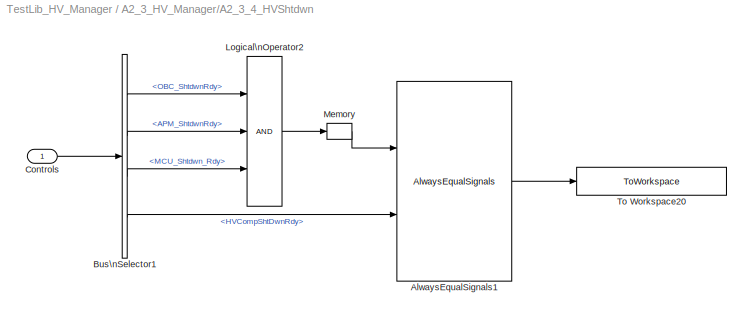
BLOCK [SubSystem] A2_3_HV_Manager/A2_3_4_HVShtdwn
  FunctionWithSeparateData = off
  MaskHideContents = off
  MinAlgLoopOccurrences = off
  Opaque = off
  Ports = [1]
  PropExecContextOutsideSubsystem = off
  RTWSystemCode = Auto
  RequestExecContextInheritance = off
  SID = 143
BLOCK [Reference] A2_3_HV_Manager/A2_3_4_HVShtdwn/AlwaysEqualSignals1  REF=EC2_libraries/AlwaysEqualSignals
  FunctionWithSeparateData = off
  Ports = [2, 1]
  RTWMemSecDataConstants = Inherit from model
  RTWMemSecDataInternal = Inherit from model
  RTWMemSecDataParameters = Inherit from model
  RTWMemSecFuncExecute = Inherit from model
  RTWMemSecFuncInitTerm = Inherit from model
  SID = 145
  ShowPortLabels = FromPortIcon
  SourceBlock = EC2_libraries/AlwaysEqualSignals
  SourceType = SubSystem
  SystemSampleTime = -1
BLOCK [BusSelector] A2_3_HV_Manager/A2_3_4_HVShtdwn/Bus\nSelector1
  OutputSignals = Powertrain_SC_Controls.OBC_Status.OBC_ShtdwnRdy,Powertrain_SC_Controls.APM_Status.APM_ShtdwnRdy,Powertrain_SC_Controls.MCU_Status.MCU_Shtdwn_Rdy,Powertrain_SC_Controls.HV_Status.HVCompShtDwnRdy
  Ports = [1, 4]
  SID = 146
BLOCK [Inport] A2_3_HV_Manager/A2_3_4_HVShtdwn/Controls
  IconDisplay = Port number
  OutDataType = fixdt(1, 16)
  OutScaling = 2^0
  SID = 144
BLOCK [Logic] A2_3_HV_Manager/A2_3_4_HVShtdwn/Logical\nOperator2
  AllPortsSameDT = off
  Inputs = 3
  OutDataTypeMode = boolean
  OutDataTypeStr = boolean
  Ports = [3, 1]
  SID = 147
BLOCK [Memory] A2_3_HV_Manager/A2_3_4_HVShtdwn/Memory
  SID = 148
BLOCK [ToWorkspace] A2_3_HV_Manager/A2_3_4_HVShtdwn/To Workspace20
  Decimation = WORKSPACE_DECIMATION
  MaxDataPoints = inf
  Ports = [1]
  SID = 149
  SampleTime = -1
  SaveFormat = Array
  VariableName = Req_A_2_3_4_Check
BLOCK [Inport] A2_3_HV_Manager/Controls
  IconDisplay = Port number
  OutDataType = fixdt(1, 16)
  OutScaling = 2^0
  SID = 2
BLOCK [Inport] A2_3_HV_Manager/Sensors
  IconDisplay = Port number
  OutDataType = fixdt(1, 16)
  OutScaling = 2^0
  Port = 2
  SID = 3
LINE A2_3_HV_Manager/A2_3_2_APM_Manager/AlwaysCompareTo:1 -> A2_3_HV_Manager/A2_3_2_APM_Manager/To Workspace2:1
LINE A2_3_HV_Manager/A2_3_2_APM_Manager/AlwaysEqualSignals:1 -> A2_3_HV_Manager/A2_3_2_APM_Manager/To Workspace1:1
LINE A2_3_HV_Manager/A2_3_2_APM_Manager/Bus\nSelector1:1 -> A2_3_HV_Manager/A2_3_2_APM_Manager/Logical\nOperator7:1
LINE A2_3_HV_Manager/A2_3_2_APM_Manager/Bus\nSelector1:2 -> A2_3_HV_Manager/A2_3_2_APM_Manager/Logical\nOperator7:2
LINE A2_3_HV_Manager/A2_3_2_APM_Manager/Bus\nSelector1:3 -> A2_3_HV_Manager/A2_3_2_APM_Manager/Logical\nOperator2:2
NET A2_3_HV_Manager/A2_3_2_APM_Manager/Bus\nSelector1:4 -> A2_3_HV_Manager/A2_3_2_APM_Manager/Data Type Conversion3:1, A2_3_HV_Manager/A2_3_2_APM_Manager/Logical\nOperator1:1, A2_3_HV_Manager/A2_3_2_APM_Manager/Relational\nOperator3:1
NET A2_3_HV_Manager/A2_3_2_APM_Manager/Bus\nSelector1:5 -> A2_3_HV_Manager/A2_3_2_APM_Manager/Compare\nTo Constant9:1, A2_3_HV_Manager/A2_3_2_APM_Manager/Data Type Conversion4:1, A2_3_HV_Manager/A2_3_2_APM_Manager/Logical\nOperator1:2, A2_3_HV_Manager/A2_3_2_APM_Manager/Relational\nOperator3:2
NET A2_3_HV_Manager/A2_3_2_APM_Manager/Bus\nSelector1:6 -> A2_3_HV_Manager/A2_3_2_APM_Manager/AlwaysCompareTo:1, A2_3_HV_Manager/A2_3_2_APM_Manager/Data Type Conversion5:1
LINE A2_3_HV_Manager/A2_3_2_APM_Manager/Bus\nSelector1:7 -> A2_3_HV_Manager/A2_3_2_APM_Manager/Data Type Conversion6:1
NET A2_3_HV_Manager/A2_3_2_APM_Manager/Bus\nSelector1:8 -> A2_3_HV_Manager/A2_3_2_APM_Manager/AlwaysEqualSignals:1, A2_3_HV_Manager/A2_3_2_APM_Manager/Data Type Conversion7:1
NET A2_3_HV_Manager/A2_3_2_APM_Manager/Bus\nSelector:1 -> A2_3_HV_Manager/A2_3_2_APM_Manager/Compare\nTo Constant8:1, A2_3_HV_Manager/A2_3_2_APM_Manager/Data Type Conversion8:1
LINE A2_3_HV_Manager/A2_3_2_APM_Manager/Compare\nTo Constant8:1 -> A2_3_HV_Manager/A2_3_2_APM_Manager/Logical\nOperator11:2
LINE A2_3_HV_Manager/A2_3_2_APM_Manager/Compare\nTo Constant9:1 -> A2_3_HV_Manager/A2_3_2_APM_Manager/Logical\nOperator11:1
LINE A2_3_HV_Manager/A2_3_2_APM_Manager/Controls:1 -> A2_3_HV_Manager/A2_3_2_APM_Manager/Bus\nSelector1:1
NET A2_3_HV_Manager/A2_3_2_APM_Manager/Data Type Conversion10:1 -> A2_3_HV_Manager/A2_3_2_APM_Manager/To Workspace10:1, A2_3_HV_Manager/A2_3_2_APM_Manager/To Workspace8:1
LINE A2_3_HV_Manager/A2_3_2_APM_Manager/Data Type Conversion3:1 -> A2_3_HV_Manager/A2_3_2_APM_Manager/To Workspace3:1
LINE A2_3_HV_Manager/A2_3_2_APM_Manager/Data Type Conversion4:1 -> A2_3_HV_Manager/A2_3_2_APM_Manager/To Workspace4:1
LINE A2_3_HV_Manager/A2_3_2_APM_Manager/Data Type Conversion5:1 -> A2_3_HV_Manager/A2_3_2_APM_Manager/To Workspace5:1
LINE A2_3_HV_Manager/A2_3_2_APM_Manager/Data Type Conversion6:1 -> A2_3_HV_Manager/A2_3_2_APM_Manager/To Workspace6:1
LINE A2_3_HV_Manager/A2_3_2_APM_Manager/Data Type Conversion7:1 -> A2_3_HV_Manager/A2_3_2_APM_Manager/To Workspace7:1
LINE A2_3_HV_Manager/A2_3_2_APM_Manager/Data Type Conversion8:1 -> A2_3_HV_Manager/A2_3_2_APM_Manager/To Workspace9:1
LINE A2_3_HV_Manager/A2_3_2_APM_Manager/Latch_to_Zero3:1 -> A2_3_HV_Manager/A2_3_2_APM_Manager/Data Type Conversion10:1
LINE A2_3_HV_Manager/A2_3_2_APM_Manager/Logical\nOperator11:1 -> A2_3_HV_Manager/A2_3_2_APM_Manager/AlwaysEqualSignals:2
LINE A2_3_HV_Manager/A2_3_2_APM_Manager/Logical\nOperator1:1 -> A2_3_HV_Manager/A2_3_2_APM_Manager/Relational\nOperator2:2
LINE A2_3_HV_Manager/A2_3_2_APM_Manager/Logical\nOperator2:1 -> A2_3_HV_Manager/A2_3_2_APM_Manager/Relational\nOperator2:1
LINE A2_3_HV_Manager/A2_3_2_APM_Manager/Logical\nOperator3:1 -> A2_3_HV_Manager/A2_3_2_APM_Manager/Latch_to_Zero3:1
LINE A2_3_HV_Manager/A2_3_2_APM_Manager/Logical\nOperator7:1 -> A2_3_HV_Manager/A2_3_2_APM_Manager/Logical\nOperator2:1
LINE A2_3_HV_Manager/A2_3_2_APM_Manager/Relational\nOperator2:1 -> A2_3_HV_Manager/A2_3_2_APM_Manager/Logical\nOperator3:1
LINE A2_3_HV_Manager/A2_3_2_APM_Manager/Relational\nOperator3:1 -> A2_3_HV_Manager/A2_3_2_APM_Manager/Logical\nOperator3:2
LINE A2_3_HV_Manager/A2_3_2_APM_Manager/Sensors:1 -> A2_3_HV_Manager/A2_3_2_APM_Manager/Bus\nSelector:1
LINE A2_3_HV_Manager/A2_3_3_OBC_Manager/AlwaysCompareTo1:1 -> A2_3_HV_Manager/A2_3_3_OBC_Manager/To Workspace14:1
LINE A2_3_HV_Manager/A2_3_3_OBC_Manager/AlwaysCompareTo:1 -> A2_3_HV_Manager/A2_3_3_OBC_Manager/To Workspace13:1
LINE A2_3_HV_Manager/A2_3_3_OBC_Manager/AlwaysEqualSignals1:1 -> A2_3_HV_Manager/A2_3_3_OBC_Manager/To Workspace22:1
NET A2_3_HV_Manager/A2_3_3_OBC_Manager/AlwaysEqualSignals2:1 -> A2_3_HV_Manager/A2_3_3_OBC_Manager/To Workspace15:1, A2_3_HV_Manager/A2_3_3_OBC_Manager/To Workspace16:1
LINE A2_3_HV_Manager/A2_3_3_OBC_Manager/AlwaysEqualSignals3:1 -> A2_3_HV_Manager/A2_3_3_OBC_Manager/To Workspace25:1
LINE A2_3_HV_Manager/A2_3_3_OBC_Manager/AlwaysEqualSignals4:1 -> A2_3_HV_Manager/A2_3_3_OBC_Manager/To Workspace20:1
LINE A2_3_HV_Manager/A2_3_3_OBC_Manager/AlwaysEqualSignals5:1 -> A2_3_HV_Manager/A2_3_3_OBC_Manager/To Workspace18:1
NET A2_3_HV_Manager/A2_3_3_OBC_Manager/AlwaysEqualSignals6:1 -> A2_3_HV_Manager/A2_3_3_OBC_Manager/To Workspace19:1, A2_3_HV_Manager/A2_3_3_OBC_Manager/To Workspace26:1
LINE A2_3_HV_Manager/A2_3_3_OBC_Manager/AlwaysEqualSignals:1 -> A2_3_HV_Manager/A2_3_3_OBC_Manager/To Workspace21:1
LINE A2_3_HV_Manager/A2_3_3_OBC_Manager/Bus\nSelector1:1 -> A2_3_HV_Manager/A2_3_3_OBC_Manager/Data Type Conversion23:1
NET A2_3_HV_Manager/A2_3_3_OBC_Manager/Bus\nSelector1:10 -> A2_3_HV_Manager/A2_3_3_OBC_Manager/Data Type Conversion20:1, A2_3_HV_Manager/A2_3_3_OBC_Manager/Goto6:1
LINE A2_3_HV_Manager/A2_3_3_OBC_Manager/Bus\nSelector1:2 -> A2_3_HV_Manager/A2_3_3_OBC_Manager/Data Type Conversion1:1
NET A2_3_HV_Manager/A2_3_3_OBC_Manager/Bus\nSelector1:3 -> A2_3_HV_Manager/A2_3_3_OBC_Manager/Data Type Conversion2:1, A2_3_HV_Manager/A2_3_3_OBC_Manager/Goto2:1
NET A2_3_HV_Manager/A2_3_3_OBC_Manager/Bus\nSelector1:4 -> A2_3_HV_Manager/A2_3_3_OBC_Manager/Data Type Conversion6:1, A2_3_HV_Manager/A2_3_3_OBC_Manager/Goto10:1
NET A2_3_HV_Manager/A2_3_3_OBC_Manager/Bus\nSelector1:5 -> A2_3_HV_Manager/A2_3_3_OBC_Manager/Data Type Conversion5:1, A2_3_HV_Manager/A2_3_3_OBC_Manager/Goto1:1
NET A2_3_HV_Manager/A2_3_3_OBC_Manager/Bus\nSelector1:6 -> A2_3_HV_Manager/A2_3_3_OBC_Manager/AlwaysCompareTo:1, A2_3_HV_Manager/A2_3_3_OBC_Manager/Data Type Conversion3:1
NET A2_3_HV_Manager/A2_3_3_OBC_Manager/Bus\nSelector1:7 -> A2_3_HV_Manager/A2_3_3_OBC_Manager/AlwaysCompareTo1:1, A2_3_HV_Manager/A2_3_3_OBC_Manager/Data Type Conversion4:1
NET A2_3_HV_Manager/A2_3_3_OBC_Manager/Bus\nSelector1:8 -> A2_3_HV_Manager/A2_3_3_OBC_Manager/Data Type Conversion22:1, A2_3_HV_Manager/A2_3_3_OBC_Manager/Goto3:1
NET A2_3_HV_Manager/A2_3_3_OBC_Manager/Bus\nSelector1:9 -> A2_3_HV_Manager/A2_3_3_OBC_Manager/Data Type Conversion16:1, A2_3_HV_Manager/A2_3_3_OBC_Manager/Goto5:1
NET A2_3_HV_Manager/A2_3_3_OBC_Manager/Bus\nSelector:1 -> A2_3_HV_Manager/A2_3_3_OBC_Manager/Data Type Conversion7:1, A2_3_HV_Manager/A2_3_3_OBC_Manager/Goto7:1
NET A2_3_HV_Manager/A2_3_3_OBC_Manager/Bus\nSelector:2 -> A2_3_HV_Manager/A2_3_3_OBC_Manager/Data Type Conversion9:1, A2_3_HV_Manager/A2_3_3_OBC_Manager/Goto4:1
NET A2_3_HV_Manager/A2_3_3_OBC_Manager/Bus\nSelector:3 -> A2_3_HV_Manager/A2_3_3_OBC_Manager/Data Type Conversion8:1, A2_3_HV_Manager/A2_3_3_OBC_Manager/Goto9:1
NET A2_3_HV_Manager/A2_3_3_OBC_Manager/Bus\nSelector:4 -> A2_3_HV_Manager/A2_3_3_OBC_Manager/Data Type Conversion10:1, A2_3_HV_Manager/A2_3_3_OBC_Manager/Goto11:1
LINE A2_3_HV_Manager/A2_3_3_OBC_Manager/Bus\nSelector:5 -> A2_3_HV_Manager/A2_3_3_OBC_Manager/Goto8:1
LINE A2_3_HV_Manager/A2_3_3_OBC_Manager/Compare\nTo Constant1:1 -> A2_3_HV_Manager/A2_3_3_OBC_Manager/AlwaysEqualSignals5:2
LINE A2_3_HV_Manager/A2_3_3_OBC_Manager/Compare\nTo Constant4:1 -> A2_3_HV_Manager/A2_3_3_OBC_Manager/AlwaysEqualSignals:1
LINE A2_3_HV_Manager/A2_3_3_OBC_Manager/Compare\nTo Constant5:1 -> A2_3_HV_Manager/A2_3_3_OBC_Manager/AlwaysEqualSignals1:1
LINE A2_3_HV_Manager/A2_3_3_OBC_Manager/Compare\nTo Constant6:1 -> A2_3_HV_Manager/A2_3_3_OBC_Manager/AlwaysEqualSignals2:1
LINE A2_3_HV_Manager/A2_3_3_OBC_Manager/Compare\nTo Constant7:1 -> A2_3_HV_Manager/A2_3_3_OBC_Manager/Logical\nOperator2:1
LINE A2_3_HV_Manager/A2_3_3_OBC_Manager/Compare\nTo Constant8:1 -> A2_3_HV_Manager/A2_3_3_OBC_Manager/Logical\nOperator1:2
LINE A2_3_HV_Manager/A2_3_3_OBC_Manager/Compare\nTo Constant9:1 -> A2_3_HV_Manager/A2_3_3_OBC_Manager/AlwaysEqualSignals1:2
LINE A2_3_HV_Manager/A2_3_3_OBC_Manager/Controls:1 -> A2_3_HV_Manager/A2_3_3_OBC_Manager/Bus\nSelector1:1
LINE A2_3_HV_Manager/A2_3_3_OBC_Manager/Data Type Conversion10:1 -> A2_3_HV_Manager/A2_3_3_OBC_Manager/To Workspace11:1
LINE A2_3_HV_Manager/A2_3_3_OBC_Manager/Data Type Conversion16:1 -> A2_3_HV_Manager/A2_3_3_OBC_Manager/To Workspace17:1
LINE A2_3_HV_Manager/A2_3_3_OBC_Manager/Data Type Conversion1:1 -> A2_3_HV_Manager/A2_3_3_OBC_Manager/To Workspace2:1
LINE A2_3_HV_Manager/A2_3_3_OBC_Manager/Data Type Conversion20:1 -> A2_3_HV_Manager/A2_3_3_OBC_Manager/To Workspace24:1
LINE A2_3_HV_Manager/A2_3_3_OBC_Manager/Data Type Conversion22:1 -> A2_3_HV_Manager/A2_3_3_OBC_Manager/To Workspace23:1
LINE A2_3_HV_Manager/A2_3_3_OBC_Manager/Data Type Conversion23:1 -> A2_3_HV_Manager/A2_3_3_OBC_Manager/To Workspace1:1
LINE A2_3_HV_Manager/A2_3_3_OBC_Manager/Data Type Conversion2:1 -> A2_3_HV_Manager/A2_3_3_OBC_Manager/To Workspace3:1
LINE A2_3_HV_Manager/A2_3_3_OBC_Manager/Data Type Conversion3:1 -> A2_3_HV_Manager/A2_3_3_OBC_Manager/To Workspace4:1
LINE A2_3_HV_Manager/A2_3_3_OBC_Manager/Data Type Conversion4:1 -> A2_3_HV_Manager/A2_3_3_OBC_Manager/To Workspace5:1
LINE A2_3_HV_Manager/A2_3_3_OBC_Manager/Data Type Conversion5:1 -> A2_3_HV_Manager/A2_3_3_OBC_Manager/To Workspace6:1
LINE A2_3_HV_Manager/A2_3_3_OBC_Manager/Data Type Conversion6:1 -> A2_3_HV_Manager/A2_3_3_OBC_Manager/To Workspace7:1
LINE A2_3_HV_Manager/A2_3_3_OBC_Manager/Data Type Conversion7:1 -> A2_3_HV_Manager/A2_3_3_OBC_Manager/To Workspace8:1
LINE A2_3_HV_Manager/A2_3_3_OBC_Manager/Data Type Conversion8:1 -> A2_3_HV_Manager/A2_3_3_OBC_Manager/To Workspace9:1
LINE A2_3_HV_Manager/A2_3_3_OBC_Manager/Data Type Conversion9:1 -> A2_3_HV_Manager/A2_3_3_OBC_Manager/To Workspace10:1
LINE A2_3_HV_Manager/A2_3_3_OBC_Manager/From10:1 -> A2_3_HV_Manager/A2_3_3_OBC_Manager/Compare\nTo Constant6:1
LINE A2_3_HV_Manager/A2_3_3_OBC_Manager/From11:1 -> A2_3_HV_Manager/A2_3_3_OBC_Manager/AlwaysEqualSignals3:2
LINE A2_3_HV_Manager/A2_3_3_OBC_Manager/From12:1 -> A2_3_HV_Manager/A2_3_3_OBC_Manager/Relational\nOperator8:2
LINE A2_3_HV_Manager/A2_3_3_OBC_Manager/From13:1 -> A2_3_HV_Manager/A2_3_3_OBC_Manager/MinMax1:2
LINE A2_3_HV_Manager/A2_3_3_OBC_Manager/From14:1 -> A2_3_HV_Manager/A2_3_3_OBC_Manager/Logical\nOperator2:2
LINE A2_3_HV_Manager/A2_3_3_OBC_Manager/From15:1 -> A2_3_HV_Manager/A2_3_3_OBC_Manager/Compare\nTo Constant8:1
LINE A2_3_HV_Manager/A2_3_3_OBC_Manager/From16:1 -> A2_3_HV_Manager/A2_3_3_OBC_Manager/Compare\nTo Constant7:1
LINE A2_3_HV_Manager/A2_3_3_OBC_Manager/From17:1 -> A2_3_HV_Manager/A2_3_3_OBC_Manager/Compare\nTo Constant1:1
LINE A2_3_HV_Manager/A2_3_3_OBC_Manager/From18:1 -> A2_3_HV_Manager/A2_3_3_OBC_Manager/Logical\nOperator1:1
LINE A2_3_HV_Manager/A2_3_3_OBC_Manager/From1:1 -> A2_3_HV_Manager/A2_3_3_OBC_Manager/NOT:1
LINE A2_3_HV_Manager/A2_3_3_OBC_Manager/From2:1 -> A2_3_HV_Manager/A2_3_3_OBC_Manager/AlwaysEqualSignals5:1
LINE A2_3_HV_Manager/A2_3_3_OBC_Manager/From3:1 -> A2_3_HV_Manager/A2_3_3_OBC_Manager/AlwaysEqualSignals6:2
LINE A2_3_HV_Manager/A2_3_3_OBC_Manager/From47:1 -> A2_3_HV_Manager/A2_3_3_OBC_Manager/OR1:1
LINE A2_3_HV_Manager/A2_3_3_OBC_Manager/From4:1 -> A2_3_HV_Manager/A2_3_3_OBC_Manager/MinMax1:1
LINE A2_3_HV_Manager/A2_3_3_OBC_Manager/From5:1 -> A2_3_HV_Manager/A2_3_3_OBC_Manager/Compare\nTo Constant5:1
LINE A2_3_HV_Manager/A2_3_3_OBC_Manager/From6:1 -> A2_3_HV_Manager/A2_3_3_OBC_Manager/Compare\nTo Constant4:1
LINE A2_3_HV_Manager/A2_3_3_OBC_Manager/From7:1 -> A2_3_HV_Manager/A2_3_3_OBC_Manager/AlwaysEqualSignals:2
LINE A2_3_HV_Manager/A2_3_3_OBC_Manager/From8:1 -> A2_3_HV_Manager/A2_3_3_OBC_Manager/Compare\nTo Constant9:1
LINE A2_3_HV_Manager/A2_3_3_OBC_Manager/From9:1 -> A2_3_HV_Manager/A2_3_3_OBC_Manager/Relational\nOperator8:1
LINE A2_3_HV_Manager/A2_3_3_OBC_Manager/Logical\nOperator1:1 -> A2_3_HV_Manager/A2_3_3_OBC_Manager/AlwaysEqualSignals2:2
LINE A2_3_HV_Manager/A2_3_3_OBC_Manager/Logical\nOperator2:1 -> A2_3_HV_Manager/A2_3_3_OBC_Manager/AlwaysEqualSignals4:2
LINE A2_3_HV_Manager/A2_3_3_OBC_Manager/Memory:1 -> A2_3_HV_Manager/A2_3_3_OBC_Manager/OR:2
LINE A2_3_HV_Manager/A2_3_3_OBC_Manager/MinMax1:1 -> A2_3_HV_Manager/A2_3_3_OBC_Manager/AlwaysEqualSignals3:1
LINE A2_3_HV_Manager/A2_3_3_OBC_Manager/NOT:1 -> A2_3_HV_Manager/A2_3_3_OBC_Manager/OR:1
NET A2_3_HV_Manager/A2_3_3_OBC_Manager/OR1:1 -> A2_3_HV_Manager/A2_3_3_OBC_Manager/AlwaysEqualSignals6:1, A2_3_HV_Manager/A2_3_3_OBC_Manager/Memory:1
LINE A2_3_HV_Manager/A2_3_3_OBC_Manager/OR:1 -> A2_3_HV_Manager/A2_3_3_OBC_Manager/OR1:2
LINE A2_3_HV_Manager/A2_3_3_OBC_Manager/Relational\nOperator8:1 -> A2_3_HV_Manager/A2_3_3_OBC_Manager/AlwaysEqualSignals4:1
LINE A2_3_HV_Manager/A2_3_3_OBC_Manager/Sensors:1 -> A2_3_HV_Manager/A2_3_3_OBC_Manager/Bus\nSelector:1
LINE A2_3_HV_Manager/A2_3_4_HVShtdwn/AlwaysEqualSignals1:1 -> A2_3_HV_Manager/A2_3_4_HVShtdwn/To Workspace20:1
LINE A2_3_HV_Manager/A2_3_4_HVShtdwn/Bus\nSelector1:1 -> A2_3_HV_Manager/A2_3_4_HVShtdwn/Logical\nOperator2:1
LINE A2_3_HV_Manager/A2_3_4_HVShtdwn/Bus\nSelector1:2 -> A2_3_HV_Manager/A2_3_4_HVShtdwn/Logical\nOperator2:2
LINE A2_3_HV_Manager/A2_3_4_HVShtdwn/Bus\nSelector1:3 -> A2_3_HV_Manager/A2_3_4_HVShtdwn/Logical\nOperator2:3
LINE A2_3_HV_Manager/A2_3_4_HVShtdwn/Bus\nSelector1:4 -> A2_3_HV_Manager/A2_3_4_HVShtdwn/AlwaysEqualSignals1:2
LINE A2_3_HV_Manager/A2_3_4_HVShtdwn/Controls:1 -> A2_3_HV_Manager/A2_3_4_HVShtdwn/Bus\nSelector1:1
LINE A2_3_HV_Manager/A2_3_4_HVShtdwn/Logical\nOperator2:1 -> A2_3_HV_Manager/A2_3_4_HVShtdwn/Memory:1
LINE A2_3_HV_Manager/A2_3_4_HVShtdwn/Memory:1 -> A2_3_HV_Manager/A2_3_4_HVShtdwn/AlwaysEqualSignals1:1
NET A2_3_HV_Manager/Controls:1 -> A2_3_HV_Manager/A2_3_1_BCM_Manager:1, A2_3_HV_Manager/A2_3_2_APM_Manager:1, A2_3_HV_Manager/A2_3_3_OBC_Manager:1, A2_3_HV_Manager/A2_3_4_HVShtdwn:1
NET A2_3_HV_Manager/Sensors:1 -> A2_3_HV_Manager/A2_3_1_BCM_Manager:2, A2_3_HV_Manager/A2_3_2_APM_Manager:2, A2_3_HV_Manager/A2_3_3_OBC_Manager:2
note: NET lines group one-source signal fan-out (src -> all destinations, sorted); 1:1 wires keep LINE
